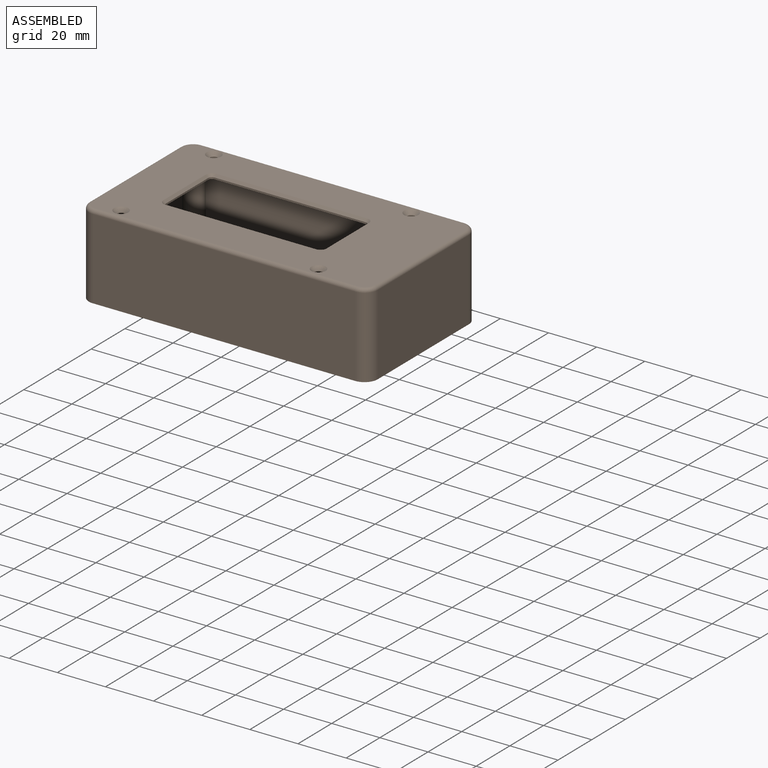
[diagram: assembled view]
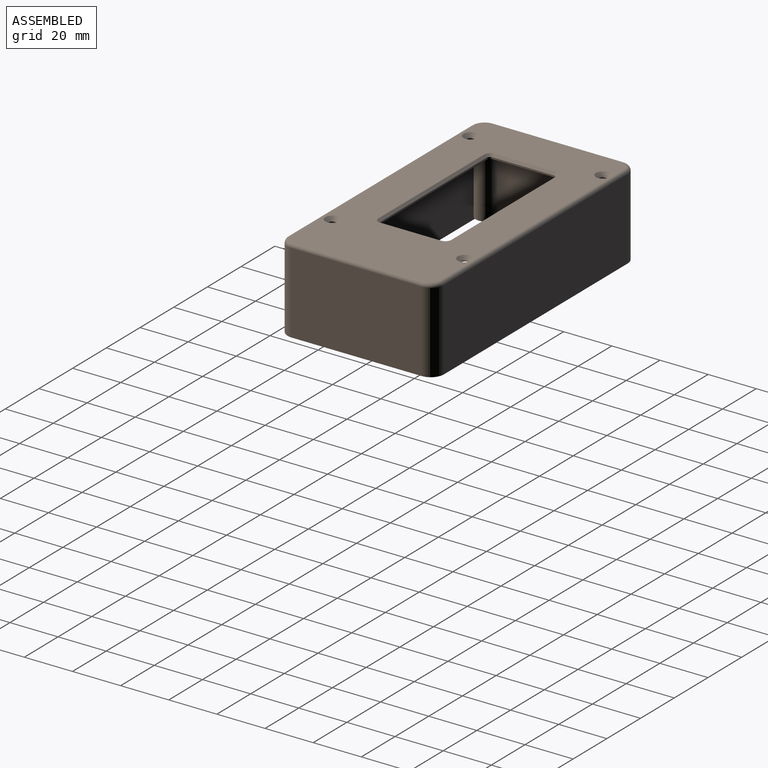
[diagram: assembled view, second angle]
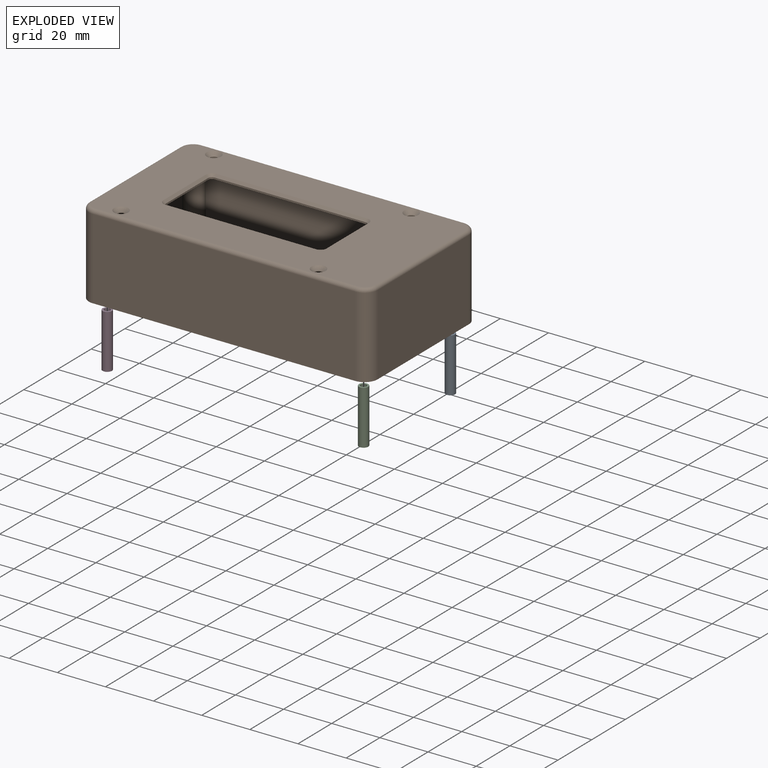
[diagram: exploded view]
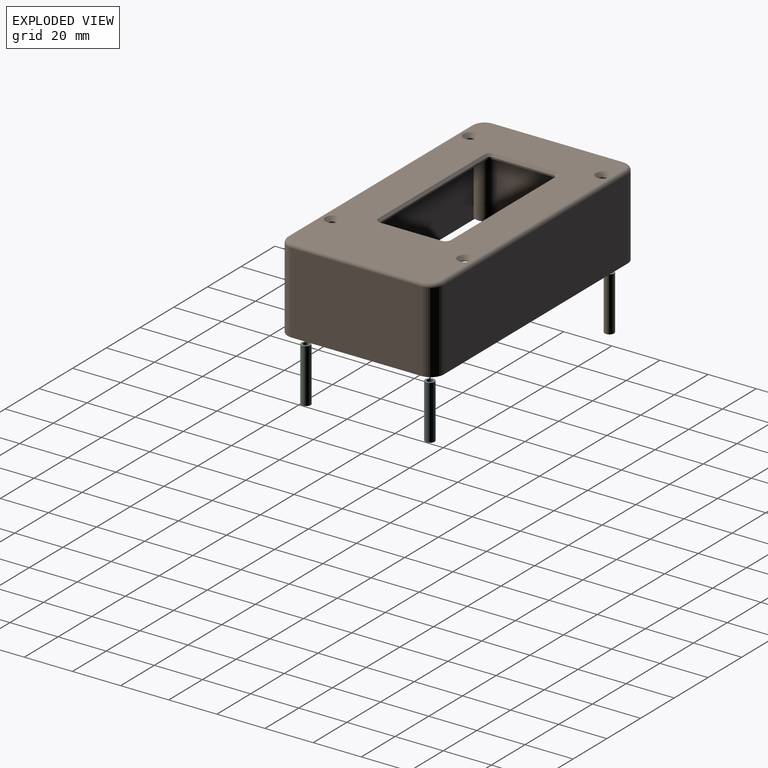
[diagram: exploded view, second angle]
ASSEMBLY  parts=5 mates=4
PART A: 4 faces, bbox 3.9x3.9x22.5 mm
  f0: plane 3.9x3.9mm, normal (0,0,-1), area 7mm2, adj f1,f2
  f1: cylinder r=1.25mm len=22.5mm, axis (0,0,1), area 176.7mm2, adj f0,f3
  f2: cylinder r=1.95mm len=22.5mm, axis (0,0,1), area 275.7mm2, adj f0,f3
  f3: plane 3.9x3.9mm, normal (0,0,1), area 7mm2, adj f1,f2
PART B: 79 faces, bbox 120.9x65.9x35 mm
  f0: plane 117x62mm, normal (0,0,1), area 5078.2mm2, adj f47,f48,f49,f50,f51,f52,f53,f54
  f1: plane 116.5x61.5mm, normal (0,0,-1), area 5054mm2, adj f11,f12,f13,f14,f15,f16,f17,f18
  f2: plane 120x65mm, normal (0,0,-1), area 621.4mm2, adj f3,f4,f5,f6,f7,f8,f9,f10
  f3: plane 109x33.5mm, normal (0,-1,0), area 3651.5mm2, adj f2,f4,f10,f54
  f4: cylinder r=5.5mm len=33.5mm, axis (0,0,1), area 289.4mm2, adj f2,f3,f5,f52
  f5: plane 54x33.5mm, normal (1,0,0), area 1809mm2, adj f2,f4,f6,f50
  f6: cylinder r=5.5mm len=33.5mm, axis (0,0,1), area 289.4mm2, adj f2,f5,f7,f48
  f7: plane 109x33.5mm, normal (0,1,0), area 3651.5mm2, adj f2,f6,f8,f47
  f8: cylinder r=5.5mm len=33.5mm, axis (0,0,1), area 289.4mm2, adj f2,f7,f9,f49
  f9: plane 54x33.5mm, normal (-1,0,0), area 1809mm2, adj f2,f8,f10,f51
  f10: cylinder r=5.5mm len=33.5mm, axis (0,0,1), area 289.4mm2, adj f2,f3,f9,f53
  f11: plane 109x33.25mm, normal (0,1,0), area 3624.3mm2, adj f1,f2,f12,f18
  f12: cylinder r=3.75mm len=33.25mm, axis (0,0,1), area 150.9mm2, adj f1,f2,f11,f13,f38,f39,f40
  f13: plane 54x33.25mm, normal (-1,0,0), area 1795.5mm2, adj f1,f2,f12,f14
  f14: cylinder r=3.75mm len=33.25mm, axis (0,0,1), area 150.9mm2, adj f1,f2,f13,f15,f44,f45,f46
  f15: plane 109x33.25mm, normal (0,-1,0), area 3624.3mm2, adj f1,f2,f14,f16
  f16: cylinder r=3.75mm len=33.25mm, axis (0,0,1), area 150.9mm2, adj f1,f2,f15,f17,f41,f42,f43
  f17: plane 54x33.25mm, normal (1,0,0), area 1795.5mm2, adj f1,f2,f16,f18
  f18: cylinder r=3.75mm len=33.25mm, axis (0,0,1), area 150.9mm2, adj f1,f2,f11,f17,f35,f36,f37
  f19: cylinder r=1.95mm len=30.75mm, axis (0,0,1), area 376.8mm2, adj f21,f22
  f20: cylinder r=4mm len=30.75mm, axis (0,0,1), area 727.9mm2, adj f1,f21,f44,f45,f46
  f21: plane 8x8mm, normal (0,0,-1), area 38.3mm2, adj f19,f20
  f22: plane 3.9x3.9mm, normal (0,0,-1), area 11.9mm2, adj f19
  f23: cylinder r=1.95mm len=30.75mm, axis (0,0,1), area 376.8mm2, adj f25,f26
  f24: cylinder r=4mm len=30.75mm, axis (0,0,1), area 727.9mm2, adj f1,f25,f41,f42,f43
  f25: plane 8x8mm, normal (0,0,-1), area 38.3mm2, adj f23,f24
  f26: plane 3.9x3.9mm, normal (0,0,-1), area 11.9mm2, adj f23
  f27: cylinder r=1.95mm len=30.75mm, axis (0,0,1), area 376.8mm2, adj f29,f30
  f28: cylinder r=4mm len=30.75mm, axis (0,0,1), area 727.9mm2, adj f1,f29,f35,f36,f37
  f29: plane 8x8mm, normal (0,0,-1), area 38.3mm2, adj f27,f28
  f30: plane 3.9x3.9mm, normal (0,0,-1), area 11.9mm2, adj f27
  f31: cylinder r=1.95mm len=30.75mm, axis (0,0,1), area 376.8mm2, adj f33,f34
  f32: cylinder r=4mm len=30.75mm, axis (0,0,1), area 727.9mm2, adj f1,f33,f38,f39,f40
  f33: plane 8x8mm, normal (0,0,-1), area 38.3mm2, adj f31,f32
  f34: plane 3.9x3.9mm, normal (0,0,-1), area 11.9mm2, adj f31
  f35: plane 2.13x2.13mm, normal (0,0,-1), area 2.3mm2, adj f18,f28,f36,f37
  f36: plane 29.75x1.07mm, normal (-0.71,0.71,0), area 45mm2, adj f1,f18,f28,f35
  f37: plane 29.75x1.07mm, normal (0.71,-0.71,0), area 45mm2, adj f1,f18,f28,f35
  f38: plane 2.13x2.13mm, normal (0,0,-1), area 2.3mm2, adj f12,f32,f39,f40
  f39: plane 29.75x1.07mm, normal (0.71,0.71,0), area 45mm2, adj f1,f12,f32,f38
  f40: plane 29.75x1.07mm, normal (-0.71,-0.71,0), area 45mm2, adj f1,f12,f32,f38
  f41: plane 2.13x2.13mm, normal (0,0,-1), area 2.3mm2, adj f16,f24,f42,f43
  f42: plane 29.75x1.07mm, normal (-0.71,-0.71,0), area 45mm2, adj f1,f16,f24,f41
  f43: plane 29.75x1.07mm, normal (0.71,0.71,0), area 45mm2, adj f1,f16,f24,f41
  f44: plane 2.13x2.13mm, normal (0,0,-1), area 2.3mm2, adj f14,f20,f45,f46
  f45: plane 29.75x1.07mm, normal (0.71,-0.71,0), area 45mm2, adj f1,f14,f20,f44
  f46: plane 29.75x1.07mm, normal (-0.71,0.71,0), area 45mm2, adj f1,f14,f20,f44
  f47: cylinder r=1.5mm len=109mm, axis (-1,0,0), area 256.8mm2, adj f0,f7,f48,f49
  f48: torus R=4mm, axis (0,0,1), area 18.3mm2, adj f0,f6,f47,f50
  f49: torus R=4mm, axis (0,0,1), area 18.3mm2, adj f0,f8,f47,f51
  f50: cylinder r=1.5mm len=54mm, axis (0,1,0), area 127.2mm2, adj f0,f5,f48,f52
  f51: cylinder r=1.5mm len=54mm, axis (0,-1,0), area 127.2mm2, adj f0,f9,f49,f53
  f52: torus R=4mm, axis (0,0,1), area 18.3mm2, adj f0,f4,f50,f54
  f53: torus R=4mm, axis (0,0,1), area 18.3mm2, adj f0,f10,f51,f54
  f54: cylinder r=1.5mm len=109mm, axis (1,0,0), area 256.8mm2, adj f0,f3,f52,f53
  f55: plane 62.8x0.75mm, normal (0,-1,0), area 47.1mm2, adj f1,f67,f70,f71
  f56: plane 25.3x0.75mm, normal (1,0,0), area 19mm2, adj f1,f67,f68,f74
  f57: plane 62.8x0.75mm, normal (0,1,0), area 47.1mm2, adj f1,f68,f69,f78
  f58: plane 25.3x0.75mm, normal (-1,0,0), area 19mm2, adj f1,f69,f70,f75
  f59: cylinder r=1.5mm len=3mm, axis (0,0,1), area 2.4mm2, adj f1,f66
  f60: cylinder r=1.5mm len=3mm, axis (0,0,1), area 2.4mm2, adj f1,f64
  f61: cylinder r=1.5mm len=3mm, axis (0,0,1), area 2.4mm2, adj f1,f63
  f62: cylinder r=1.5mm len=3mm, axis (0,0,1), area 2.4mm2, adj f1,f65
  f63: cone r=1.5mm half-angle=45deg, axis (0,0,1), area 30mm2, adj f0,f61
  f64: cone r=1.5mm half-angle=45deg, axis (0,0,1), area 30mm2, adj f0,f60
  f65: cone r=1.5mm half-angle=45deg, axis (0,0,1), area 30mm2, adj f0,f62
  f66: cone r=1.5mm half-angle=45deg, axis (0,0,1), area 30mm2, adj f0,f59
  f67: cylinder r=1.5mm len=1.5mm, axis (0,0,1), area 1.8mm2, adj f1,f55,f56,f72
  f68: cylinder r=1.5mm len=1.5mm, axis (0,0,-1), area 1.8mm2, adj f1,f56,f57,f76
  f69: cylinder r=1.5mm len=1.5mm, axis (0,0,1), area 1.8mm2, adj f1,f57,f58,f77
  f70: cylinder r=1.5mm len=1.5mm, axis (0,0,-1), area 1.8mm2, adj f1,f55,f58,f73
  f71: plane 62.8x1mm, normal (0,-0.71,0.71), area 88.8mm2, adj f0,f55,f72,f73
  f72: cone r=2.5mm half-angle=45deg, axis (0,0,1), area 4.4mm2, adj f0,f67,f71,f74
  f73: cone r=2.5mm half-angle=45deg, axis (0,0,1), area 4.4mm2, adj f0,f70,f71,f75
  f74: plane 25.3x1mm, normal (0.71,0,0.71), area 35.8mm2, adj f0,f56,f72,f76
  f75: plane 25.3x1mm, normal (-0.71,0,0.71), area 35.8mm2, adj f0,f58,f73,f77
  f76: cone r=2.5mm half-angle=45deg, axis (0,0,1), area 4.4mm2, adj f0,f68,f74,f78
  f77: cone r=2.5mm half-angle=45deg, axis (0,0,1), area 4.4mm2, adj f0,f69,f75,f78
  f78: plane 62.8x1mm, normal (0,0.71,0.71), area 88.8mm2, adj f0,f57,f76,f77
PART C: 4 faces, bbox 3.9x3.9x22.5 mm
  f0: plane 3.9x3.9mm, normal (0,0,-1), area 7mm2, adj f1,f2
  f1: cylinder r=1.25mm len=22.5mm, axis (0,0,1), area 176.7mm2, adj f0,f3
  f2: cylinder r=1.95mm len=22.5mm, axis (0,0,1), area 275.7mm2, adj f0,f3
  f3: plane 3.9x3.9mm, normal (0,0,1), area 7mm2, adj f1,f2
PART D: 4 faces, bbox 3.9x3.9x22.5 mm
  f0: plane 3.9x3.9mm, normal (0,0,-1), area 7mm2, adj f1,f2
  f1: cylinder r=1.25mm len=22.5mm, axis (0,0,1), area 176.7mm2, adj f0,f3
  f2: cylinder r=1.95mm len=22.5mm, axis (0,0,1), area 275.7mm2, adj f0,f3
  f3: plane 3.9x3.9mm, normal (0,0,1), area 7mm2, adj f1,f2
PART E: 4 faces, bbox 3.9x3.9x22.5 mm
  f0: plane 3.9x3.9mm, normal (0,0,-1), area 7mm2, adj f1,f2
  f1: cylinder r=1.25mm len=22.5mm, axis (0,0,1), area 176.7mm2, adj f0,f3
  f2: cylinder r=1.95mm len=22.5mm, axis (0,0,1), area 275.7mm2, adj f0,f3
  f3: plane 3.9x3.9mm, normal (0,0,1), area 7mm2, adj f1,f2
PLACE A t=(0,0,-37)mm
PLACE B t=(0,0,-37)mm
PLACE C t=(0,0,-37)mm
PLACE D t=(0,0,-37)mm
PLACE E t=(0,0,-37)mm
MATE fastened C.f1 <-> B.f31  axis (0,0,-1) through (53.25,-25.75,-69.5)mm
MATE fastened E.f1 <-> B.f23  axis (0,0,1) through (-53.25,25.75,-69.5)mm
MATE fastened A.f1 <-> B.f19  axis (0,0,-1) through (53.25,25.75,-69.5)mm
MATE fastened B.f27 <-> D.f1  axis (0,0,-1) through (-53.25,-25.75,-69.5)mm
